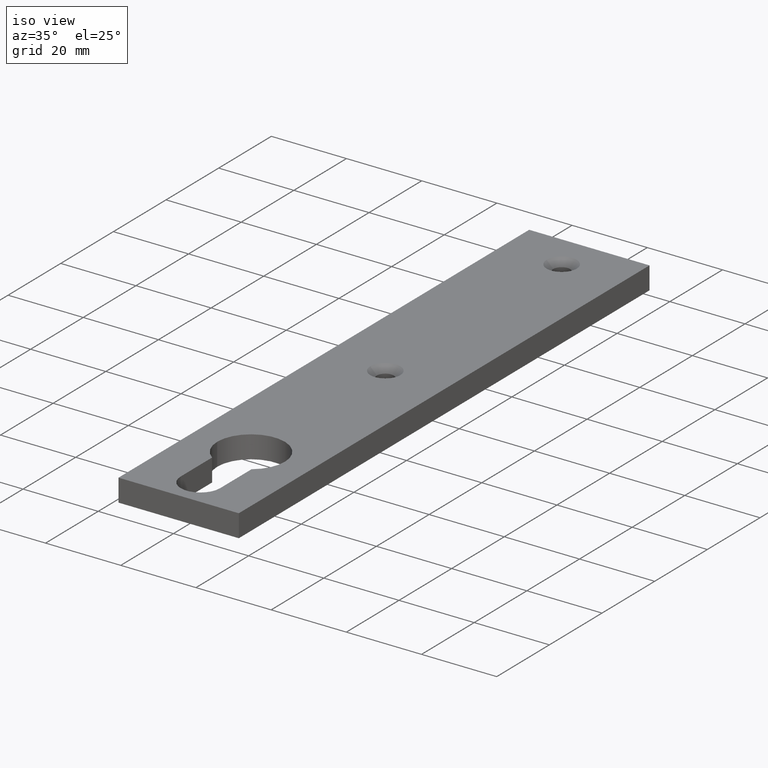
[diagram: clean part render]
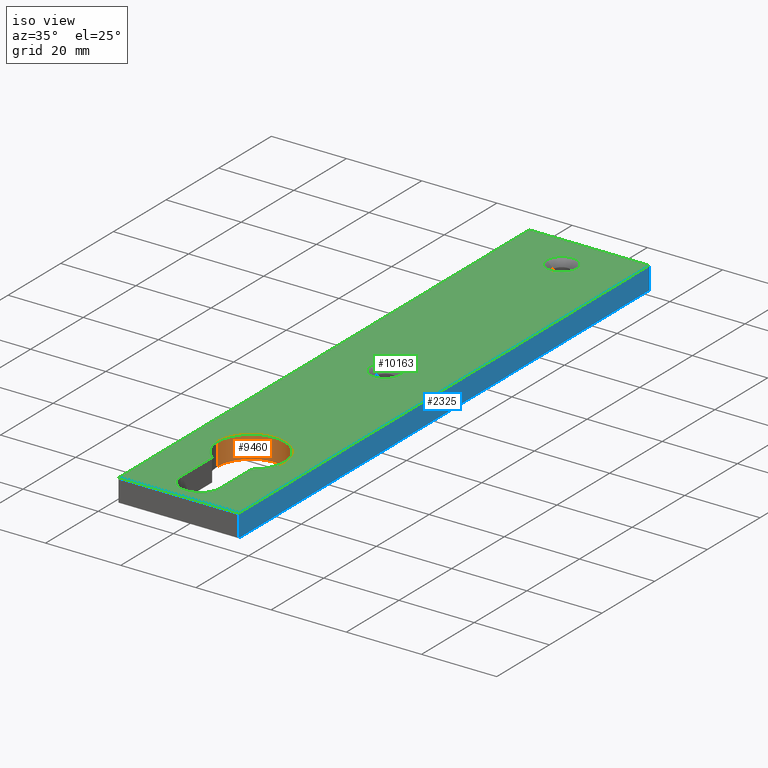
[diagram: same view with three faces highlighted in distinct colors, each labeled with its STEP entity id]
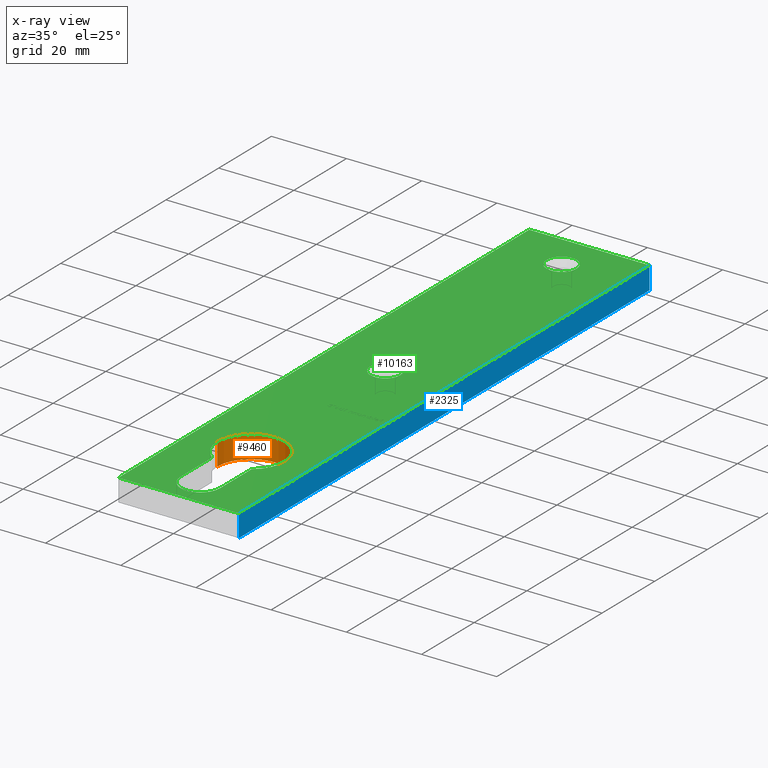
[diagram: x-ray of the same camera — body ghosted, the three highlighted faces saturated]
A machine part, iso view with three faces highlighted in distinct colors.
The next image is the same camera in x-ray (body ghosted, the three faces saturated) — at least one of them is partly hidden behind the body in this view.
Their STEP definitions:

[orange] entity #9460 — the highlighted cylindrical surface (partial cylindrical patch) has radius 9 mm, axis along (-0, -0, -1).
#144 = ORIENTED_EDGE ( 'NONE', *, *, #2291, .F. ) ;
#215 = CARTESIAN_POINT ( 'NONE',  ( 0.0000000000000000000, -50.49999999999997900, 6.000000000000000000 ) ) ;
#561 = CARTESIAN_POINT ( 'NONE',  ( -9.000000000000000000, -50.49999999999997900, 0.0000000000000000000 ) ) ;
#598 = EDGE_CURVE ( 'NONE', #8243, #9063, #4215, .T. ) ;
#1357 = VERTEX_POINT ( 'NONE', #561 ) ;
#1406 = CARTESIAN_POINT ( 'NONE',  ( 9.000000000000000000, -50.49999999999997900, 0.0000000000000000000 ) ) ;
#1655 = EDGE_LOOP ( 'NONE', ( #9061, #5158, #9547, #144 ) ) ;
#1672 = CYLINDRICAL_SURFACE ( 'NONE', #9229, 9.000000000000000000 ) ;
#1744 = DIRECTION ( 'NONE',  ( 0.0000000000000000000, 0.0000000000000000000, 1.000000000000000000 ) ) ;
#1819 = DIRECTION ( 'NONE',  ( 1.000000000000000000, 0.0000000000000000000, 0.0000000000000000000 ) ) ;
#1853 = VECTOR ( 'NONE', #4818, 1000.000000000000000 ) ;
#2219 = DIRECTION ( 'NONE',  ( 1.000000000000000000, 0.0000000000000000000, 0.0000000000000000000 ) ) ;
#2291 = EDGE_CURVE ( 'NONE', #9063, #1357, #6103, .T. ) ;
#3166 = VERTEX_POINT ( 'NONE', #8791 ) ;
#3909 = CARTESIAN_POINT ( 'NONE',  ( 9.000000000000000000, -50.49999999999997900, 6.000000000000000000 ) ) ;
#4063 = DIRECTION ( 'NONE',  ( -0.0000000000000000000, -0.0000000000000000000, -1.000000000000000000 ) ) ;
#4169 = FACE_OUTER_BOUND ( 'NONE', #1655, .T. ) ;
#4215 = LINE ( 'NONE', #3909, #1853 ) ;
#4818 = DIRECTION ( 'NONE',  ( -0.0000000000000000000, -0.0000000000000000000, -1.000000000000000000 ) ) ;
#4960 = VECTOR ( 'NONE', #4063, 1000.000000000000000 ) ;
#5158 = ORIENTED_EDGE ( 'NONE', *, *, #9702, .T. ) ;
#5262 = AXIS2_PLACEMENT_3D ( 'NONE', #215, #1744, #1819 ) ;
#5300 = EDGE_CURVE ( 'NONE', #3166, #1357, #7338, .T. ) ;
#6103 = CIRCLE ( 'NONE', #7526, 9.000000000000000000 ) ;
#6460 = CARTESIAN_POINT ( 'NONE',  ( -9.000000000000000000, -50.49999999999997900, 6.000000000000000000 ) ) ;
#6623 = DIRECTION ( 'NONE',  ( -1.000000000000000000, 0.0000000000000000000, 0.0000000000000000000 ) ) ;
#6727 = DIRECTION ( 'NONE',  ( -0.0000000000000000000, -0.0000000000000000000, -1.000000000000000000 ) ) ;
#6985 = DIRECTION ( 'NONE',  ( 0.0000000000000000000, 0.0000000000000000000, 1.000000000000000000 ) ) ;
#7281 = CIRCLE ( 'NONE', #5262, 9.000000000000000000 ) ;
#7315 = CARTESIAN_POINT ( 'NONE',  ( 9.000000000000000000, -50.49999999999997900, 6.000000000000000000 ) ) ;
#7338 = LINE ( 'NONE', #6460, #4960 ) ;
#7526 = AXIS2_PLACEMENT_3D ( 'NONE', #7724, #6985, #2219 ) ;
#7724 = CARTESIAN_POINT ( 'NONE',  ( 0.0000000000000000000, -50.49999999999997900, 0.0000000000000000000 ) ) ;
#8179 = CARTESIAN_POINT ( 'NONE',  ( 0.0000000000000000000, -50.49999999999997900, 6.000000000000000000 ) ) ;
#8243 = VERTEX_POINT ( 'NONE', #7315 ) ;
#8791 = CARTESIAN_POINT ( 'NONE',  ( -9.000000000000000000, -50.49999999999997900, 6.000000000000000000 ) ) ;
#9061 = ORIENTED_EDGE ( 'NONE', *, *, #598, .F. ) ;
#9063 = VERTEX_POINT ( 'NONE', #1406 ) ;
#9229 = AXIS2_PLACEMENT_3D ( 'NONE', #8179, #6727, #6623 ) ;
#9460 = ADVANCED_FACE ( 'NONE', ( #4169 ), #1672, .F. ) ;
#9547 = ORIENTED_EDGE ( 'NONE', *, *, #5300, .T. ) ;
#9702 = EDGE_CURVE ( 'NONE', #8243, #3166, #7281, .T. ) ;

[blue] entity #2325 — the highlighted planar face has unit normal (-1, -0, 0).
#663 = EDGE_CURVE ( 'NONE', #6871, #4206, #7709, .T. ) ;
#927 = EDGE_CURVE ( 'NONE', #4206, #8576, #9335, .T. ) ;
#973 = DIRECTION ( 'NONE',  ( -0.0000000000000000000, -0.0000000000000000000, -1.000000000000000000 ) ) ;
#1957 = LINE ( 'NONE', #8277, #3817 ) ;
#2292 = PLANE ( 'NONE',  #3917 ) ;
#2325 = ADVANCED_FACE ( 'NONE', ( #3125 ), #2292, .F. ) ;
#2476 = VECTOR ( 'NONE', #973, 1000.000000000000000 ) ;
#2583 = CARTESIAN_POINT ( 'NONE',  ( 16.00000000000001100, -77.99999999999998600, 0.0000000000000000000 ) ) ;
#2963 = VECTOR ( 'NONE', #6258, 1000.000000000000000 ) ;
#3086 = CARTESIAN_POINT ( 'NONE',  ( 15.99999999999998900, 78.00000000000001400, 6.000000000000000000 ) ) ;
#3125 = FACE_OUTER_BOUND ( 'NONE', #8395, .T. ) ;
#3448 = DIRECTION ( 'NONE',  ( -1.334402673828313300E-016, 1.000000000000000000, -0.0000000000000000000 ) ) ;
#3817 = VECTOR ( 'NONE', #3448, 1000.000000000000000 ) ;
#3917 = AXIS2_PLACEMENT_3D ( 'NONE', #3086, #6950, #6174 ) ;
#4020 = DIRECTION ( 'NONE',  ( -0.0000000000000000000, -0.0000000000000000000, -1.000000000000000000 ) ) ;
#4036 = LINE ( 'NONE', #8832, #4792 ) ;
#4206 = VERTEX_POINT ( 'NONE', #2583 ) ;
#4553 = VERTEX_POINT ( 'NONE', #7364 ) ;
#4692 = ORIENTED_EDGE ( 'NONE', *, *, #9432, .F. ) ;
#4792 = VECTOR ( 'NONE', #4020, 1000.000000000000000 ) ;
#6174 = DIRECTION ( 'NONE',  ( 1.334402673828313300E-016, -1.000000000000000000, 0.0000000000000000000 ) ) ;
#6258 = DIRECTION ( 'NONE',  ( -1.334402673828313300E-016, 1.000000000000000000, -0.0000000000000000000 ) ) ;
#6734 = EDGE_CURVE ( 'NONE', #6871, #4553, #1957, .T. ) ;
#6741 = ORIENTED_EDGE ( 'NONE', *, *, #663, .T. ) ;
#6871 = VERTEX_POINT ( 'NONE', #7851 ) ;
#6950 = DIRECTION ( 'NONE',  ( -1.000000000000000000, -1.334402673828313300E-016, 0.0000000000000000000 ) ) ;
#7364 = CARTESIAN_POINT ( 'NONE',  ( 15.99999999999998900, 78.00000000000001400, 6.000000000000000000 ) ) ;
#7672 = ORIENTED_EDGE ( 'NONE', *, *, #927, .T. ) ;
#7709 = LINE ( 'NONE', #8073, #2476 ) ;
#7851 = CARTESIAN_POINT ( 'NONE',  ( 16.00000000000001100, -77.99999999999998600, 6.000000000000000000 ) ) ;
#8073 = CARTESIAN_POINT ( 'NONE',  ( 16.00000000000001100, -77.99999999999998600, 6.000000000000000000 ) ) ;
#8277 = CARTESIAN_POINT ( 'NONE',  ( 15.99999999999998900, 78.00000000000001400, 6.000000000000000000 ) ) ;
#8395 = EDGE_LOOP ( 'NONE', ( #7672, #4692, #10166, #6741 ) ) ;
#8576 = VERTEX_POINT ( 'NONE', #8625 ) ;
#8625 = CARTESIAN_POINT ( 'NONE',  ( 15.99999999999998900, 78.00000000000001400, 0.0000000000000000000 ) ) ;
#8832 = CARTESIAN_POINT ( 'NONE',  ( 15.99999999999998900, 78.00000000000001400, 6.000000000000000000 ) ) ;
#9335 = LINE ( 'NONE', #9381, #2963 ) ;
#9381 = CARTESIAN_POINT ( 'NONE',  ( 15.99999999999998900, 78.00000000000001400, 0.0000000000000000000 ) ) ;
#9432 = EDGE_CURVE ( 'NONE', #4553, #8576, #4036, .T. ) ;
#10166 = ORIENTED_EDGE ( 'NONE', *, *, #6734, .F. ) ;

[green] entity #10163 — the highlighted planar face has unit normal (-0, 0, 1).
#66 = VERTEX_POINT ( 'NONE', #1621 ) ;
#215 = CARTESIAN_POINT ( 'NONE',  ( 0.0000000000000000000, -50.49999999999997900, 6.000000000000000000 ) ) ;
#263 = EDGE_CURVE ( 'NONE', #5279, #6871, #6961, .T. ) ;
#265 = CARTESIAN_POINT ( 'NONE',  ( -16.00000000000001100, 78.00000000000001400, 6.000000000000000000 ) ) ;
#332 = EDGE_CURVE ( 'NONE', #2384, #10026, #459, .T. ) ;
#459 = CIRCLE ( 'NONE', #2644, 4.000000000000003600 ) ;
#471 = CARTESIAN_POINT ( 'NONE',  ( -4.000000000000003600, 67.50000000000001400, 6.000000000000000000 ) ) ;
#486 = VECTOR ( 'NONE', #1326, 1000.000000000000000 ) ;
#520 = FACE_OUTER_BOUND ( 'NONE', #2804, .T. ) ;
#551 = EDGE_CURVE ( 'NONE', #4419, #7076, #6194, .T. ) ;
#680 = DIRECTION ( 'NONE',  ( 1.000000000000000000, 0.0000000000000000000, 0.0000000000000000000 ) ) ;
#779 = VERTEX_POINT ( 'NONE', #471 ) ;
#904 = ORIENTED_EDGE ( 'NONE', *, *, #9121, .F. ) ;
#1252 = DIRECTION ( 'NONE',  ( 1.000000000000000000, 0.0000000000000000000, 0.0000000000000000000 ) ) ;
#1269 = FACE_BOUND ( 'NONE', #9813, .T. ) ;
#1326 = DIRECTION ( 'NONE',  ( 1.556803119466365500E-016, -1.000000000000000000, 0.0000000000000000000 ) ) ;
#1542 = FACE_BOUND ( 'NONE', #7412, .T. ) ;
#1566 = CIRCLE ( 'NONE', #2000, 4.000000000000003600 ) ;
#1621 = CARTESIAN_POINT ( 'NONE',  ( 4.000000000000003600, 67.50000000000001400, 6.000000000000000000 ) ) ;
#1632 = ORIENTED_EDGE ( 'NONE', *, *, #263, .T. ) ;
#1744 = DIRECTION ( 'NONE',  ( 0.0000000000000000000, 0.0000000000000000000, 1.000000000000000000 ) ) ;
#1819 = DIRECTION ( 'NONE',  ( 1.000000000000000000, 0.0000000000000000000, 0.0000000000000000000 ) ) ;
#1924 = VECTOR ( 'NONE', #7720, 1000.000000000000000 ) ;
#1936 = DIRECTION ( 'NONE',  ( 0.0000000000000000000, -0.0000000000000000000, -1.000000000000000000 ) ) ;
#1957 = LINE ( 'NONE', #8277, #3817 ) ;
#1995 = ORIENTED_EDGE ( 'NONE', *, *, #3296, .T. ) ;
#2000 = AXIS2_PLACEMENT_3D ( 'NONE', #2701, #1936, #8282 ) ;
#2069 = CARTESIAN_POINT ( 'NONE',  ( 0.0000000000000000000, 0.5000000000000177600, 6.000000000000000000 ) ) ;
#2101 = CIRCLE ( 'NONE', #4656, 9.000000000000000000 ) ;
#2198 = CIRCLE ( 'NONE', #6326, 4.000000000000003600 ) ;
#2384 = VERTEX_POINT ( 'NONE', #2579 ) ;
#2388 = CARTESIAN_POINT ( 'NONE',  ( 0.0000000000000000000, 0.5000000000000177600, 6.000000000000000000 ) ) ;
#2524 = DIRECTION ( 'NONE',  ( 0.0000000000000000000, -0.0000000000000000000, -1.000000000000000000 ) ) ;
#2579 = CARTESIAN_POINT ( 'NONE',  ( 4.000000000000003600, 0.5000000000000177600, 6.000000000000000000 ) ) ;
#2591 = CARTESIAN_POINT ( 'NONE',  ( -5.249999999999999100, -69.74999999999997200, 6.000000000000000000 ) ) ;
#2644 = AXIS2_PLACEMENT_3D ( 'NONE', #2069, #5258, #1252 ) ;
#2701 = CARTESIAN_POINT ( 'NONE',  ( 0.0000000000000000000, 67.50000000000001400, 6.000000000000000000 ) ) ;
#2705 = DIRECTION ( 'NONE',  ( -1.000000000000000000, -0.0000000000000000000, -0.0000000000000000000 ) ) ;
#2804 = EDGE_LOOP ( 'NONE', ( #4545, #9628, #1995, #1632 ) ) ;
#2808 = CARTESIAN_POINT ( 'NONE',  ( -16.00000000000001100, 78.00000000000001400, 6.000000000000000000 ) ) ;
#2871 = ORIENTED_EDGE ( 'NONE', *, *, #4137, .F. ) ;
#2953 = EDGE_CURVE ( 'NONE', #6754, #8243, #6852, .T. ) ;
#3087 = DIRECTION ( 'NONE',  ( 0.0000000000000000000, 0.0000000000000000000, 1.000000000000000000 ) ) ;
#3152 = CARTESIAN_POINT ( 'NONE',  ( 0.0000000000000000000, 0.0000000000000000000, 6.000000000000000000 ) ) ;
#3166 = VERTEX_POINT ( 'NONE', #8791 ) ;
#3248 = CARTESIAN_POINT ( 'NONE',  ( -5.250000000000000000, -57.81009575860670000, 6.000000000000000000 ) ) ;
#3296 = EDGE_CURVE ( 'NONE', #4758, #5279, #8881, .T. ) ;
#3327 = DIRECTION ( 'NONE',  ( 0.0000000000000000000, 0.0000000000000000000, 1.000000000000000000 ) ) ;
#3361 = DIRECTION ( 'NONE',  ( 1.000000000000000000, 0.0000000000000000000, 0.0000000000000000000 ) ) ;
#3387 = DIRECTION ( 'NONE',  ( 1.000000000000000000, 0.0000000000000000000, 0.0000000000000000000 ) ) ;
#3428 = EDGE_LOOP ( 'NONE', ( #6909, #4358 ) ) ;
#3448 = DIRECTION ( 'NONE',  ( -1.334402673828313300E-016, 1.000000000000000000, -0.0000000000000000000 ) ) ;
#3630 = ORIENTED_EDGE ( 'NONE', *, *, #10266, .F. ) ;
#3681 = CARTESIAN_POINT ( 'NONE',  ( -4.000000000000003600, 0.5000000000000183200, 6.000000000000000000 ) ) ;
#3817 = VECTOR ( 'NONE', #3448, 1000.000000000000000 ) ;
#3949 = DIRECTION ( 'NONE',  ( -0.0000000000000000000, 0.0000000000000000000, 1.000000000000000000 ) ) ;
#4019 = PLANE ( 'NONE',  #4937 ) ;
#4137 = EDGE_CURVE ( 'NONE', #3166, #4419, #2101, .T. ) ;
#4321 = CARTESIAN_POINT ( 'NONE',  ( 0.0000000000000000000, -69.74999999999997200, 6.000000000000000000 ) ) ;
#4339 = VECTOR ( 'NONE', #2705, 1000.000000000000000 ) ;
#4358 = ORIENTED_EDGE ( 'NONE', *, *, #4422, .T. ) ;
#4419 = VERTEX_POINT ( 'NONE', #3248 ) ;
#4422 = EDGE_CURVE ( 'NONE', #779, #66, #9227, .T. ) ;
#4545 = ORIENTED_EDGE ( 'NONE', *, *, #6734, .T. ) ;
#4553 = VERTEX_POINT ( 'NONE', #7364 ) ;
#4593 = LINE ( 'NONE', #265, #4339 ) ;
#4619 = CARTESIAN_POINT ( 'NONE',  ( 5.249999999999999100, -69.74999999999997200, 6.000000000000000000 ) ) ;
#4656 = AXIS2_PLACEMENT_3D ( 'NONE', #8150, #3327, #3361 ) ;
#4758 = VERTEX_POINT ( 'NONE', #5833 ) ;
#4789 = DIRECTION ( 'NONE',  ( 0.0000000000000000000, -0.0000000000000000000, -1.000000000000000000 ) ) ;
#4811 = AXIS2_PLACEMENT_3D ( 'NONE', #4321, #9916, #5117 ) ;
#4937 = AXIS2_PLACEMENT_3D ( 'NONE', #3152, #3949, #9622 ) ;
#5109 = ORIENTED_EDGE ( 'NONE', *, *, #2953, .F. ) ;
#5117 = DIRECTION ( 'NONE',  ( 1.000000000000000000, 0.0000000000000000000, 0.0000000000000000000 ) ) ;
#5182 = AXIS2_PLACEMENT_3D ( 'NONE', #5581, #2524, #5652 ) ;
#5258 = DIRECTION ( 'NONE',  ( 0.0000000000000000000, -0.0000000000000000000, -1.000000000000000000 ) ) ;
#5260 = FACE_BOUND ( 'NONE', #3428, .T. ) ;
#5262 = AXIS2_PLACEMENT_3D ( 'NONE', #215, #1744, #1819 ) ;
#5279 = VERTEX_POINT ( 'NONE', #5662 ) ;
#5414 = EDGE_CURVE ( 'NONE', #4553, #4758, #4593, .T. ) ;
#5421 = CARTESIAN_POINT ( 'NONE',  ( 0.0000000000000000000, -50.49999999999997900, 6.000000000000000000 ) ) ;
#5531 = ORIENTED_EDGE ( 'NONE', *, *, #332, .T. ) ;
#5581 = CARTESIAN_POINT ( 'NONE',  ( 0.0000000000000000000, 67.50000000000001400, 6.000000000000000000 ) ) ;
#5583 = VECTOR ( 'NONE', #7195, 1000.000000000000000 ) ;
#5652 = DIRECTION ( 'NONE',  ( 1.000000000000000000, 0.0000000000000000000, 0.0000000000000000000 ) ) ;
#5662 = CARTESIAN_POINT ( 'NONE',  ( -15.99999999999998600, -77.99999999999998600, 6.000000000000000000 ) ) ;
#5833 = CARTESIAN_POINT ( 'NONE',  ( -16.00000000000001100, 78.00000000000001400, 6.000000000000000000 ) ) ;
#5853 = CARTESIAN_POINT ( 'NONE',  ( -15.99999999999998600, -77.99999999999998600, 6.000000000000000000 ) ) ;
#6194 = LINE ( 'NONE', #9469, #5583 ) ;
#6326 = AXIS2_PLACEMENT_3D ( 'NONE', #2388, #4789, #8789 ) ;
#6397 = ORIENTED_EDGE ( 'NONE', *, *, #6570, .T. ) ;
#6570 = EDGE_CURVE ( 'NONE', #10026, #2384, #2198, .T. ) ;
#6619 = CARTESIAN_POINT ( 'NONE',  ( 5.250000000000000000, -57.81009575860670000, 6.000000000000000000 ) ) ;
#6734 = EDGE_CURVE ( 'NONE', #6871, #4553, #1957, .T. ) ;
#6754 = VERTEX_POINT ( 'NONE', #6619 ) ;
#6852 = CIRCLE ( 'NONE', #8400, 9.000000000000000000 ) ;
#6871 = VERTEX_POINT ( 'NONE', #7851 ) ;
#6909 = ORIENTED_EDGE ( 'NONE', *, *, #8481, .T. ) ;
#6914 = CARTESIAN_POINT ( 'NONE',  ( 5.250000000000000000, -57.81009575860670000, 6.000000000000000000 ) ) ;
#6961 = LINE ( 'NONE', #5853, #8984 ) ;
#7076 = VERTEX_POINT ( 'NONE', #2591 ) ;
#7195 = DIRECTION ( 'NONE',  ( 7.264394424382670500E-017, -1.000000000000000000, -0.0000000000000000000 ) ) ;
#7281 = CIRCLE ( 'NONE', #5262, 9.000000000000000000 ) ;
#7315 = CARTESIAN_POINT ( 'NONE',  ( 9.000000000000000000, -50.49999999999997900, 6.000000000000000000 ) ) ;
#7364 = CARTESIAN_POINT ( 'NONE',  ( 15.99999999999998900, 78.00000000000001400, 6.000000000000000000 ) ) ;
#7412 = EDGE_LOOP ( 'NONE', ( #5531, #6397 ) ) ;
#7720 = DIRECTION ( 'NONE',  ( 7.264394424382670500E-017, 1.000000000000000000, -0.0000000000000000000 ) ) ;
#7851 = CARTESIAN_POINT ( 'NONE',  ( 16.00000000000001100, -77.99999999999998600, 6.000000000000000000 ) ) ;
#8150 = CARTESIAN_POINT ( 'NONE',  ( 0.0000000000000000000, -50.49999999999997900, 6.000000000000000000 ) ) ;
#8243 = VERTEX_POINT ( 'NONE', #7315 ) ;
#8277 = CARTESIAN_POINT ( 'NONE',  ( 15.99999999999998900, 78.00000000000001400, 6.000000000000000000 ) ) ;
#8282 = DIRECTION ( 'NONE',  ( 1.000000000000000000, 0.0000000000000000000, 0.0000000000000000000 ) ) ;
#8400 = AXIS2_PLACEMENT_3D ( 'NONE', #5421, #3087, #680 ) ;
#8481 = EDGE_CURVE ( 'NONE', #66, #779, #1566, .T. ) ;
#8789 = DIRECTION ( 'NONE',  ( 1.000000000000000000, 0.0000000000000000000, 0.0000000000000000000 ) ) ;
#8791 = CARTESIAN_POINT ( 'NONE',  ( -9.000000000000000000, -50.49999999999997900, 6.000000000000000000 ) ) ;
#8795 = ORIENTED_EDGE ( 'NONE', *, *, #9702, .F. ) ;
#8881 = LINE ( 'NONE', #2808, #486 ) ;
#8984 = VECTOR ( 'NONE', #3387, 1000.000000000000000 ) ;
#9100 = VERTEX_POINT ( 'NONE', #4619 ) ;
#9121 = EDGE_CURVE ( 'NONE', #9100, #6754, #10157, .T. ) ;
#9227 = CIRCLE ( 'NONE', #5182, 4.000000000000003600 ) ;
#9400 = CIRCLE ( 'NONE', #4811, 5.249999999999999100 ) ;
#9469 = CARTESIAN_POINT ( 'NONE',  ( -5.249999999999999100, -69.74999999999997200, 6.000000000000000000 ) ) ;
#9524 = ORIENTED_EDGE ( 'NONE', *, *, #551, .F. ) ;
#9622 = DIRECTION ( 'NONE',  ( 1.000000000000000000, 0.0000000000000000000, 0.0000000000000000000 ) ) ;
#9628 = ORIENTED_EDGE ( 'NONE', *, *, #5414, .T. ) ;
#9702 = EDGE_CURVE ( 'NONE', #8243, #3166, #7281, .T. ) ;
#9813 = EDGE_LOOP ( 'NONE', ( #9524, #2871, #8795, #5109, #904, #3630 ) ) ;
#9916 = DIRECTION ( 'NONE',  ( 0.0000000000000000000, 0.0000000000000000000, 1.000000000000000000 ) ) ;
#10026 = VERTEX_POINT ( 'NONE', #3681 ) ;
#10157 = LINE ( 'NONE', #6914, #1924 ) ;
#10163 = ADVANCED_FACE ( 'NONE', ( #5260, #1542, #1269, #520 ), #4019, .T. ) ;
#10266 = EDGE_CURVE ( 'NONE', #7076, #9100, #9400, .T. ) ;